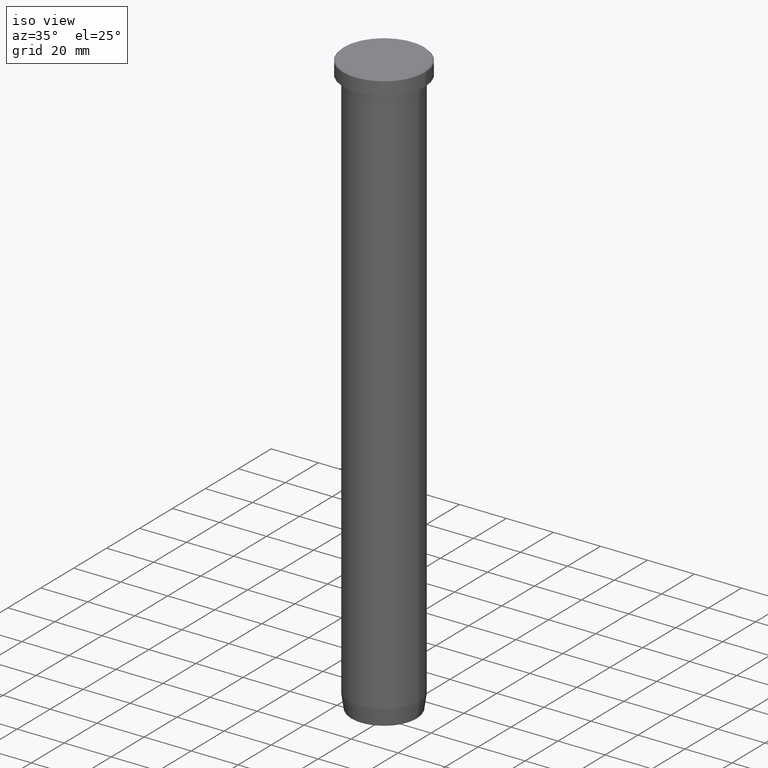
[diagram: clean part render]
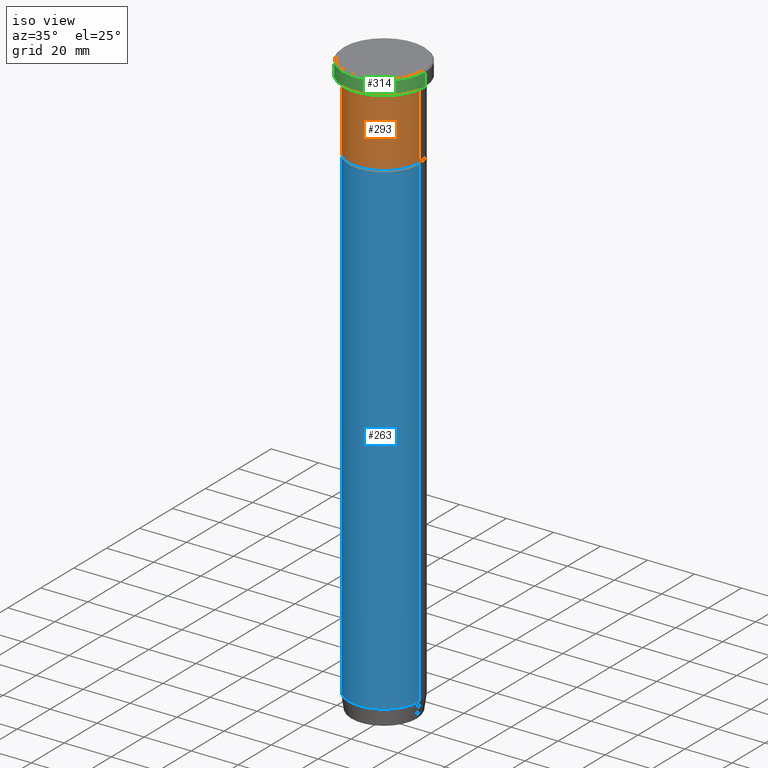
[diagram: same view with three faces highlighted in distinct colors, each labeled with its STEP entity id]
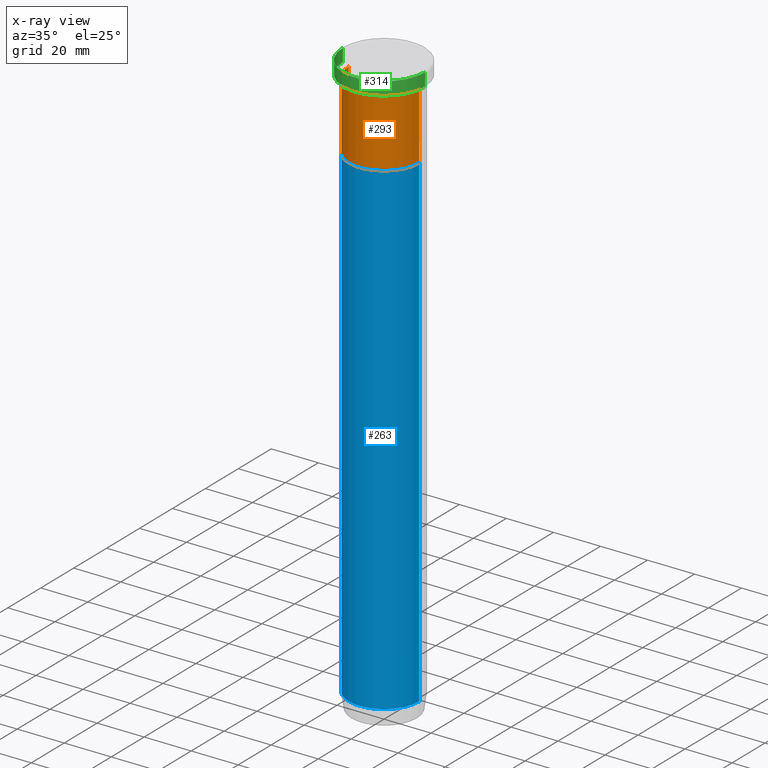
[diagram: x-ray of the same camera — body ghosted, the three highlighted faces saturated]
A machine part, iso view with three faces highlighted in distinct colors.
The next image is the same camera in x-ray (body ghosted, the three faces saturated) — at least one of them is partly hidden behind the body in this view.
Their STEP definitions:

[orange] entity #293 — the highlighted cylindrical surface (partial cylindrical patch) has radius 15 mm, axis along (-0, -0, 1).
#17 = CARTESIAN_POINT ( 'NONE',  ( -15.00000000000000000, 1.836970198721029589E-15, 0.000000000000000000 ) ) ;
#22 = DIRECTION ( 'NONE',  ( 1.000000000000000000, 0.000000000000000000, 0.000000000000000000 ) ) ;
#46 = EDGE_CURVE ( 'NONE', #59, #444, #391, .T. ) ;
#59 = VERTEX_POINT ( 'NONE', #439 ) ;
#97 = AXIS2_PLACEMENT_3D ( 'NONE', #236, #483, #245 ) ;
#109 = ORIENTED_EDGE ( 'NONE', *, *, #358, .F. ) ;
#113 = FACE_OUTER_BOUND ( 'NONE', #334, .T. ) ;
#116 = EDGE_CURVE ( 'NONE', #59, #341, #290, .T. ) ;
#123 = VECTOR ( 'NONE', #395, 1000.000000000000000 ) ;
#197 = DIRECTION ( 'NONE',  ( -0.000000000000000000, -0.000000000000000000, 1.000000000000000000 ) ) ;
#204 = CARTESIAN_POINT ( 'NONE',  ( 15.00000000000000000, 0.000000000000000000, 0.000000000000000000 ) ) ;
#236 = CARTESIAN_POINT ( 'NONE',  ( 0.000000000000000000, 0.000000000000000000, -36.00000000000000000 ) ) ;
#240 = VECTOR ( 'NONE', #197, 1000.000000000000000 ) ;
#241 = ORIENTED_EDGE ( 'NONE', *, *, #46, .T. ) ;
#245 = DIRECTION ( 'NONE',  ( 1.000000000000000000, 0.000000000000000000, 0.000000000000000000 ) ) ;
#248 = CARTESIAN_POINT ( 'NONE',  ( 0.000000000000000000, 0.000000000000000000, 0.000000000000000000 ) ) ;
#256 = CIRCLE ( 'NONE', #409, 15.00000000000000000 ) ;
#278 = CARTESIAN_POINT ( 'NONE',  ( 15.00000000000000000, 0.000000000000000000, -6.999999999999999112 ) ) ;
#282 = ORIENTED_EDGE ( 'NONE', *, *, #116, .F. ) ;
#290 = LINE ( 'NONE', #17, #240 ) ;
#293 = ADVANCED_FACE ( 'NONE', ( #113 ), #296, .T. ) ;
#296 = CYLINDRICAL_SURFACE ( 'NONE', #491, 15.00000000000000000 ) ;
#323 = EDGE_CURVE ( 'NONE', #444, #478, #445, .T. ) ;
#330 = DIRECTION ( 'NONE',  ( -0.000000000000000000, -0.000000000000000000, 1.000000000000000000 ) ) ;
#334 = EDGE_LOOP ( 'NONE', ( #282, #241, #535, #109 ) ) ;
#336 = CARTESIAN_POINT ( 'NONE',  ( 0.000000000000000000, 0.000000000000000000, -6.999999999999999112 ) ) ;
#341 = VERTEX_POINT ( 'NONE', #529 ) ;
#358 = EDGE_CURVE ( 'NONE', #341, #478, #256, .T. ) ;
#391 = CIRCLE ( 'NONE', #97, 15.00000000000000000 ) ;
#395 = DIRECTION ( 'NONE',  ( -0.000000000000000000, -0.000000000000000000, 1.000000000000000000 ) ) ;
#406 = CARTESIAN_POINT ( 'NONE',  ( 15.00000000000000000, 0.000000000000000000, -36.00000000000000000 ) ) ;
#409 = AXIS2_PLACEMENT_3D ( 'NONE', #336, #330, #554 ) ;
#439 = CARTESIAN_POINT ( 'NONE',  ( -15.00000000000000000, 1.836970198721029589E-15, -36.00000000000000000 ) ) ;
#440 = DIRECTION ( 'NONE',  ( -0.000000000000000000, -0.000000000000000000, 1.000000000000000000 ) ) ;
#444 = VERTEX_POINT ( 'NONE', #406 ) ;
#445 = LINE ( 'NONE', #204, #123 ) ;
#478 = VERTEX_POINT ( 'NONE', #278 ) ;
#483 = DIRECTION ( 'NONE',  ( -0.000000000000000000, -0.000000000000000000, 1.000000000000000000 ) ) ;
#491 = AXIS2_PLACEMENT_3D ( 'NONE', #248, #440, #22 ) ;
#529 = CARTESIAN_POINT ( 'NONE',  ( -15.00000000000000000, 1.836970198721029589E-15, -6.999999999999999112 ) ) ;
#535 = ORIENTED_EDGE ( 'NONE', *, *, #323, .T. ) ;
#554 = DIRECTION ( 'NONE',  ( 1.000000000000000000, 0.000000000000000000, 0.000000000000000000 ) ) ;

[blue] entity #263 — the highlighted cylindrical surface (partial cylindrical patch) has radius 15 mm, axis along (-0, -0, 1).
#38 = EDGE_CURVE ( 'NONE', #255, #339, #595, .T. ) ;
#63 = ORIENTED_EDGE ( 'NONE', *, *, #139, .F. ) ;
#77 = DIRECTION ( 'NONE',  ( -0.000000000000000000, -0.000000000000000000, 1.000000000000000000 ) ) ;
#80 = CARTESIAN_POINT ( 'NONE',  ( 0.000000000000000000, 0.000000000000000000, -243.0000000000000000 ) ) ;
#84 = AXIS2_PLACEMENT_3D ( 'NONE', #566, #196, #340 ) ;
#91 = EDGE_CURVE ( 'NONE', #474, #339, #398, .T. ) ;
#107 = DIRECTION ( 'NONE',  ( -0.000000000000000000, -0.000000000000000000, 1.000000000000000000 ) ) ;
#139 = EDGE_CURVE ( 'NONE', #443, #255, #570, .T. ) ;
#144 = VECTOR ( 'NONE', #166, 1000.000000000000000 ) ;
#166 = DIRECTION ( 'NONE',  ( -0.000000000000000000, -0.000000000000000000, 1.000000000000000000 ) ) ;
#196 = DIRECTION ( 'NONE',  ( -0.000000000000000000, -0.000000000000000000, 1.000000000000000000 ) ) ;
#201 = EDGE_CURVE ( 'NONE', #443, #474, #230, .T. ) ;
#214 = CARTESIAN_POINT ( 'NONE',  ( -15.00000000000000000, 1.836970198721029589E-15, -243.0000000000000000 ) ) ;
#224 = CYLINDRICAL_SURFACE ( 'NONE', #367, 15.00000000000000000 ) ;
#230 = CIRCLE ( 'NONE', #471, 15.00000000000000000 ) ;
#255 = VERTEX_POINT ( 'NONE', #383 ) ;
#261 = DIRECTION ( 'NONE',  ( 1.000000000000000000, 0.000000000000000000, 0.000000000000000000 ) ) ;
#263 = ADVANCED_FACE ( 'NONE', ( #327 ), #224, .T. ) ;
#327 = FACE_OUTER_BOUND ( 'NONE', #456, .T. ) ;
#339 = VERTEX_POINT ( 'NONE', #351 ) ;
#340 = DIRECTION ( 'NONE',  ( 1.000000000000000000, 0.000000000000000000, 0.000000000000000000 ) ) ;
#351 = CARTESIAN_POINT ( 'NONE',  ( 15.00000000000000000, 0.000000000000000000, -36.00000000000000000 ) ) ;
#367 = AXIS2_PLACEMENT_3D ( 'NONE', #515, #107, #437 ) ;
#383 = CARTESIAN_POINT ( 'NONE',  ( -15.00000000000000000, 1.836970198721029589E-15, -36.00000000000000000 ) ) ;
#398 = LINE ( 'NONE', #581, #144 ) ;
#413 = ORIENTED_EDGE ( 'NONE', *, *, #91, .T. ) ;
#425 = DIRECTION ( 'NONE',  ( -0.000000000000000000, -0.000000000000000000, 1.000000000000000000 ) ) ;
#437 = DIRECTION ( 'NONE',  ( 1.000000000000000000, 0.000000000000000000, 0.000000000000000000 ) ) ;
#438 = ORIENTED_EDGE ( 'NONE', *, *, #201, .T. ) ;
#443 = VERTEX_POINT ( 'NONE', #214 ) ;
#456 = EDGE_LOOP ( 'NONE', ( #63, #438, #413, #488 ) ) ;
#471 = AXIS2_PLACEMENT_3D ( 'NONE', #80, #77, #261 ) ;
#474 = VERTEX_POINT ( 'NONE', #552 ) ;
#488 = ORIENTED_EDGE ( 'NONE', *, *, #38, .F. ) ;
#504 = VECTOR ( 'NONE', #425, 1000.000000000000000 ) ;
#515 = CARTESIAN_POINT ( 'NONE',  ( 0.000000000000000000, 0.000000000000000000, 0.000000000000000000 ) ) ;
#520 = CARTESIAN_POINT ( 'NONE',  ( -15.00000000000000000, 1.836970198721029589E-15, 0.000000000000000000 ) ) ;
#552 = CARTESIAN_POINT ( 'NONE',  ( 15.00000000000000000, 0.000000000000000000, -243.0000000000000000 ) ) ;
#566 = CARTESIAN_POINT ( 'NONE',  ( 0.000000000000000000, 0.000000000000000000, -36.00000000000000000 ) ) ;
#570 = LINE ( 'NONE', #520, #504 ) ;
#581 = CARTESIAN_POINT ( 'NONE',  ( 15.00000000000000000, 0.000000000000000000, 0.000000000000000000 ) ) ;
#595 = CIRCLE ( 'NONE', #84, 15.00000000000000000 ) ;

[green] entity #314 — the highlighted cylindrical surface (partial cylindrical patch) has radius 17.5 mm, axis along (-0, -0, 1).
#1 = VECTOR ( 'NONE', #356, 1000.000000000000000 ) ;
#3 = EDGE_CURVE ( 'NONE', #287, #335, #157, .T. ) ;
#14 = DIRECTION ( 'NONE',  ( -0.000000000000000000, -0.000000000000000000, 1.000000000000000000 ) ) ;
#35 = VECTOR ( 'NONE', #14, 1000.000000000000000 ) ;
#41 = DIRECTION ( 'NONE',  ( 1.000000000000000000, 0.000000000000000000, 0.000000000000000000 ) ) ;
#44 = AXIS2_PLACEMENT_3D ( 'NONE', #258, #451, #531 ) ;
#66 = FACE_OUTER_BOUND ( 'NONE', #78, .T. ) ;
#78 = EDGE_LOOP ( 'NONE', ( #118, #346, #288, #82 ) ) ;
#79 = DIRECTION ( 'NONE',  ( 1.000000000000000000, 0.000000000000000000, 0.000000000000000000 ) ) ;
#82 = ORIENTED_EDGE ( 'NONE', *, *, #506, .T. ) ;
#118 = ORIENTED_EDGE ( 'NONE', *, *, #173, .F. ) ;
#127 = CYLINDRICAL_SURFACE ( 'NONE', #191, 17.50000000000000000 ) ;
#133 = CARTESIAN_POINT ( 'NONE',  ( 0.000000000000000000, 0.000000000000000000, -0.5000000000000073275 ) ) ;
#157 = LINE ( 'NONE', #436, #35 ) ;
#173 = EDGE_CURVE ( 'NONE', #482, #355, #588, .T. ) ;
#191 = AXIS2_PLACEMENT_3D ( 'NONE', #410, #590, #79 ) ;
#258 = CARTESIAN_POINT ( 'NONE',  ( 0.000000000000000000, 0.000000000000000000, -5.999999999999999112 ) ) ;
#287 = VERTEX_POINT ( 'NONE', #517 ) ;
#288 = ORIENTED_EDGE ( 'NONE', *, *, #3, .T. ) ;
#314 = ADVANCED_FACE ( 'NONE', ( #66 ), #127, .T. ) ;
#317 = DIRECTION ( 'NONE',  ( 0.000000000000000000, 0.000000000000000000, -1.000000000000000000 ) ) ;
#318 = CIRCLE ( 'NONE', #499, 17.50000000000000000 ) ;
#335 = VERTEX_POINT ( 'NONE', #489 ) ;
#343 = CIRCLE ( 'NONE', #44, 17.50000000000000000 ) ;
#346 = ORIENTED_EDGE ( 'NONE', *, *, #441, .T. ) ;
#348 = CARTESIAN_POINT ( 'NONE',  ( -17.50000000000000000, 2.143131898507868248E-15, -5.999999999999999112 ) ) ;
#355 = VERTEX_POINT ( 'NONE', #359 ) ;
#356 = DIRECTION ( 'NONE',  ( -0.000000000000000000, -0.000000000000000000, 1.000000000000000000 ) ) ;
#359 = CARTESIAN_POINT ( 'NONE',  ( -17.50000000000000000, 2.143131898507868248E-15, -0.5000000000000073275 ) ) ;
#410 = CARTESIAN_POINT ( 'NONE',  ( 0.000000000000000000, 0.000000000000000000, 0.000000000000000000 ) ) ;
#436 = CARTESIAN_POINT ( 'NONE',  ( 17.50000000000000000, 0.000000000000000000, 0.000000000000000000 ) ) ;
#441 = EDGE_CURVE ( 'NONE', #482, #287, #343, .T. ) ;
#451 = DIRECTION ( 'NONE',  ( -0.000000000000000000, -0.000000000000000000, 1.000000000000000000 ) ) ;
#482 = VERTEX_POINT ( 'NONE', #348 ) ;
#486 = CARTESIAN_POINT ( 'NONE',  ( -17.50000000000000000, 2.143131898507868248E-15, 0.000000000000000000 ) ) ;
#489 = CARTESIAN_POINT ( 'NONE',  ( 17.50000000000000000, 0.000000000000000000, -0.5000000000000073275 ) ) ;
#499 = AXIS2_PLACEMENT_3D ( 'NONE', #133, #317, #41 ) ;
#506 = EDGE_CURVE ( 'NONE', #335, #355, #318, .T. ) ;
#517 = CARTESIAN_POINT ( 'NONE',  ( 17.50000000000000000, 0.000000000000000000, -5.999999999999999112 ) ) ;
#531 = DIRECTION ( 'NONE',  ( 1.000000000000000000, 0.000000000000000000, 0.000000000000000000 ) ) ;
#588 = LINE ( 'NONE', #486, #1 ) ;
#590 = DIRECTION ( 'NONE',  ( -0.000000000000000000, -0.000000000000000000, 1.000000000000000000 ) ) ;